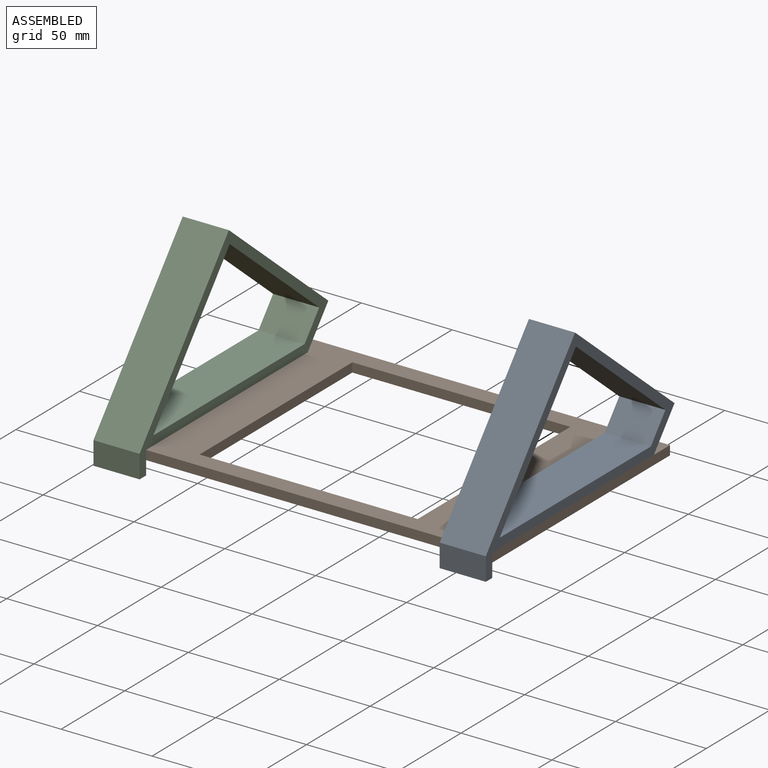
[diagram: assembled view]
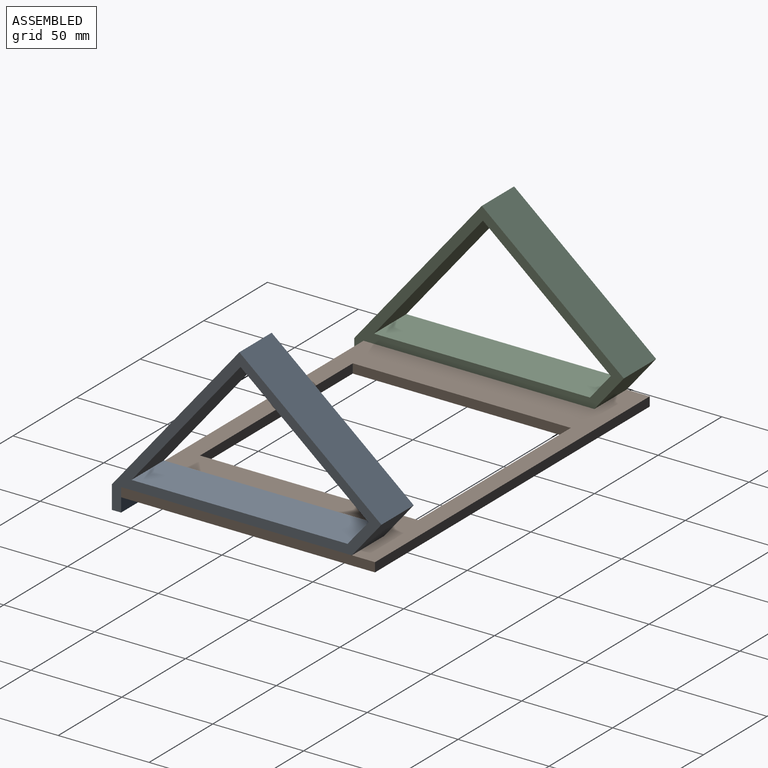
[diagram: assembled view, second angle]
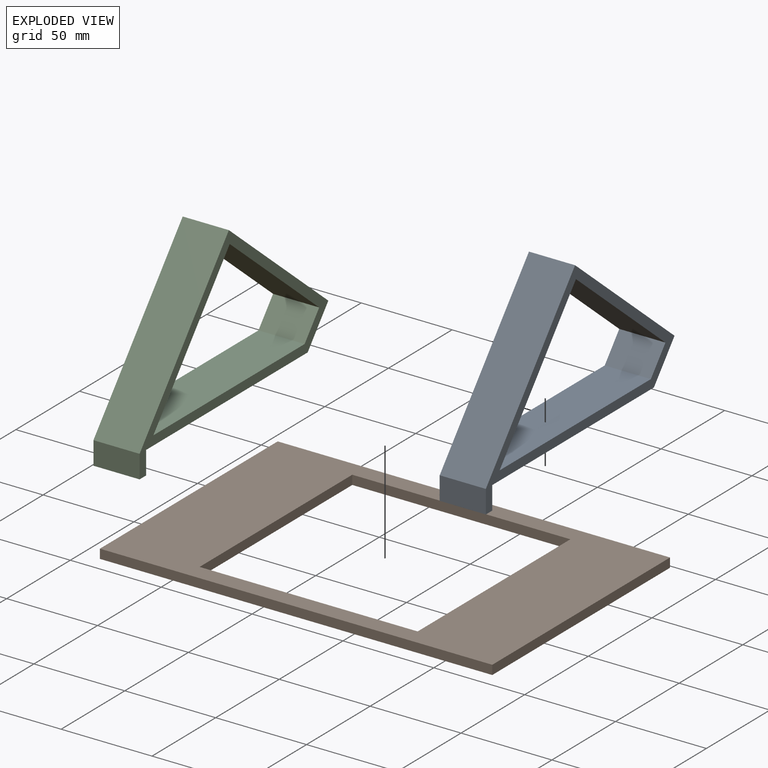
[diagram: exploded view]
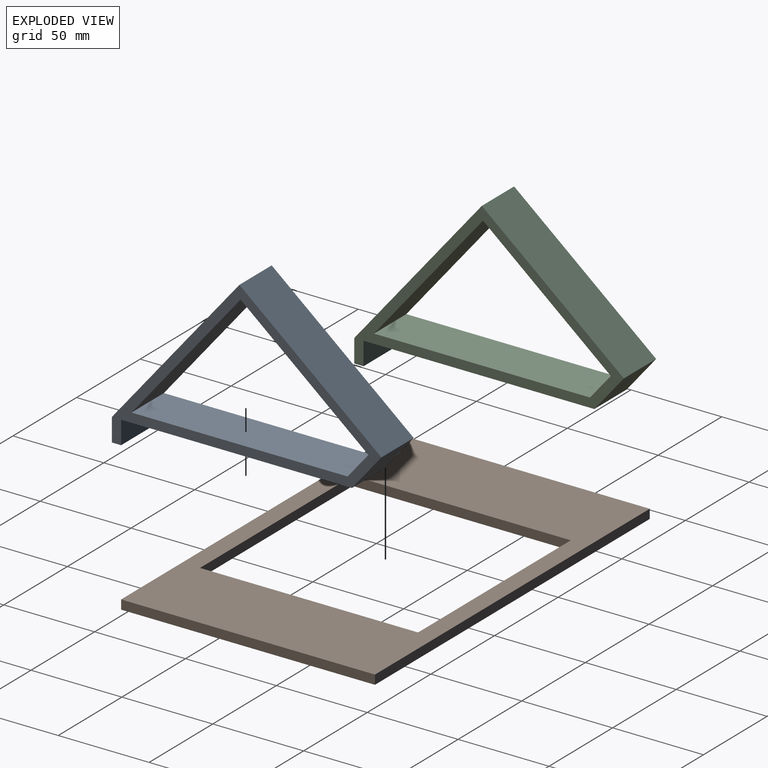
[diagram: exploded view, second angle]
ASSEMBLY  parts=3 mates=2
PART A: 13 faces, bbox 119.6x101.6x25.4 mm
  f0: plane 97.69x81.15mm, normal (0.77,0.64,0), area 3225.8mm2, adj f1,f10,f11,f12
  f1: plane 25.4x25.4mm, normal (0,1,0), area 645.2mm2, adj f0,f2,f11,f12
  f2: plane 101.6x25.4mm, normal (-1,0,0), area 2580.6mm2, adj f1,f3,f11,f12
  f3: plane 109.8x25.4mm, normal (0,-1,0), area 2788.8mm2, adj f2,f4,f11,f12
  f4: plane 25.4x9.77mm, normal (0.64,-0.77,0), area 322.6mm2, adj f3,f5,f11,f12
  f5: plane 25.4x3.91mm, normal (0.77,0.64,0), area 129mm2, adj f4,f10,f11,f12
  f6: plane 93.89x25.4mm, normal (0,1,0), area 2384.8mm2, adj f7,f9,f11,f12
  f7: plane 91.44x25.4mm, normal (1,0,0), area 2322.6mm2, adj f6,f8,f11,f12
  f8: plane 25.4x17.94mm, normal (0,-1,0), area 455.6mm2, adj f7,f9,f11,f12
  f9: plane 91.44x75.96mm, normal (-0.77,-0.64,0), area 3019.3mm2, adj f6,f8,f11,f12
  f10: plane 25.4x9.77mm, normal (-0.64,0.77,0), area 322.6mm2, adj f0,f5,f11,f12
  f11: plane 119.56x101.6mm, normal (0,0,1), area 1819.7mm2, adj f0,f1,f2,f3,f4,f5,f6,f7
  f12: plane 119.56x101.6mm, normal (0,0,-1), area 1819.7mm2, adj f0,f1,f2,f3,f4,f5,f6,f7
PART B: 10 faces, bbox 215.9x139.7x5.1 mm
  f0: plane 120x5.08mm, normal (1,0,0), area 609.6mm2, adj f1,f7,f8,f9
  f1: plane 120x5.08mm, normal (0,-1,0), area 609.6mm2, adj f0,f2,f8,f9
  f2: plane 120x5.08mm, normal (-1,0,0), area 609.6mm2, adj f1,f7,f8,f9
  f3: plane 139.7x5.08mm, normal (1,0,0), area 709.7mm2, adj f4,f6,f8,f9
  f4: plane 215.9x5.08mm, normal (0,1,0), area 1096.8mm2, adj f3,f5,f8,f9
  f5: plane 139.7x5.08mm, normal (-1,0,0), area 709.7mm2, adj f4,f6,f8,f9
  f6: plane 215.9x5.08mm, normal (0,-1,0), area 1096.8mm2, adj f3,f5,f8,f9
  f7: plane 120x5.08mm, normal (0,1,0), area 609.6mm2, adj f0,f2,f8,f9
  f8: plane 215.9x139.7mm, normal (0,0,1), area 15761.2mm2, adj f0,f1,f2,f3,f4,f5,f6,f7
  f9: plane 215.9x139.7mm, normal (0,0,-1), area 15761.2mm2, adj f0,f1,f2,f3,f4,f5,f6,f7
PART C: same geometry as A
PLACE A rot(axis=(-0.32,0.89,-0.32),96.6deg) t=(-44.19,-49.73,123.42)mm
PLACE B t=(-75.27,-54.22,53.42)mm
PLACE C rot(axis=(-0.32,0.89,-0.32),96.6deg) t=(-234.69,-49.73,123.42)mm
MATE fastened C.f0 <-> B.f8  axis (0,0,-1) through (-234.69,-98.58,58.5)mm
MATE fastened A.f0 <-> B.f8  axis (0,0,-1) through (-18.79,-98.58,58.5)mm
